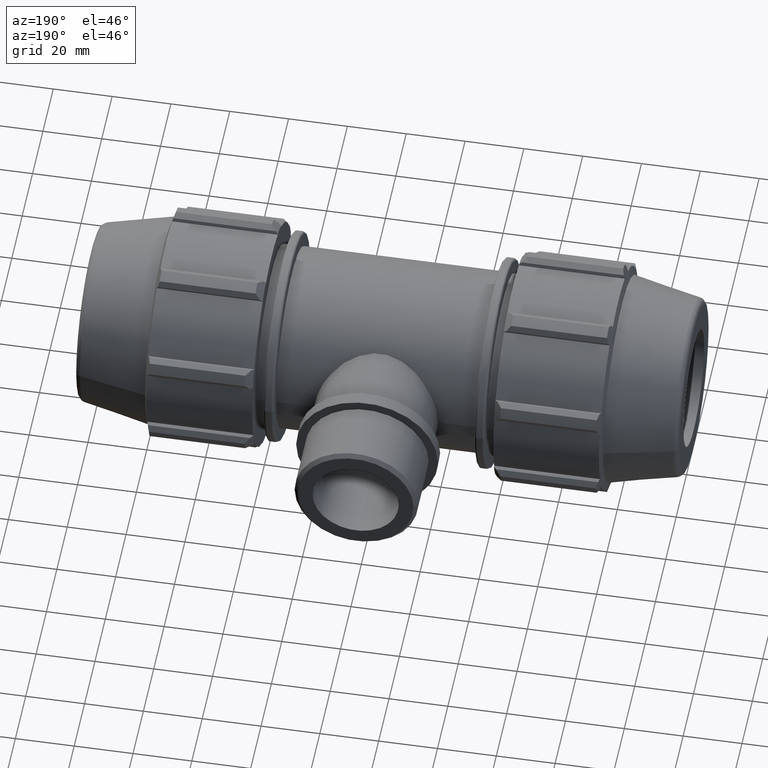
[diagram: clean part render]
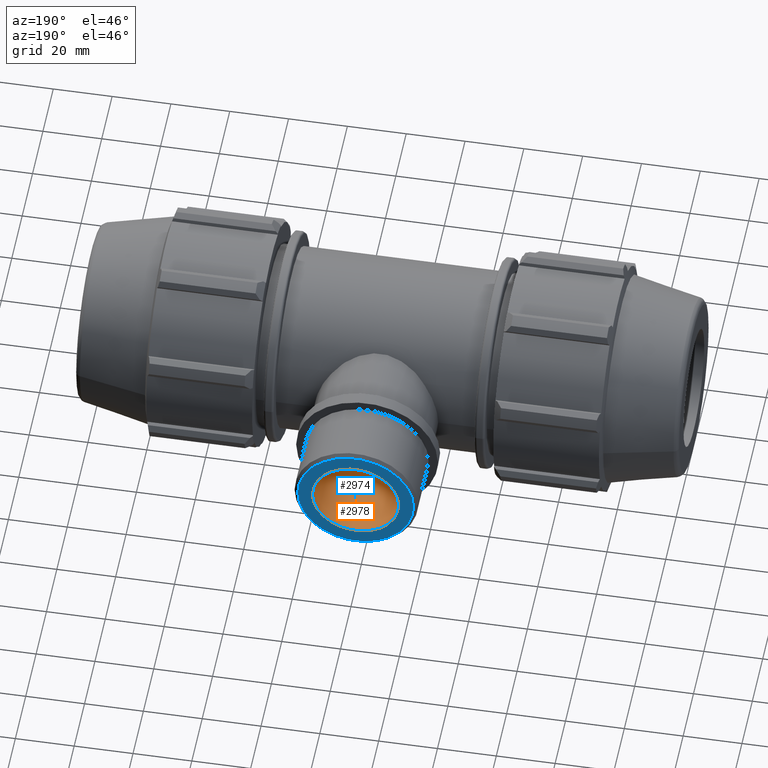
[diagram: same view with the hole feature highlighted: cylindrical wall and planar end face, labeled with their STEP entity ids]
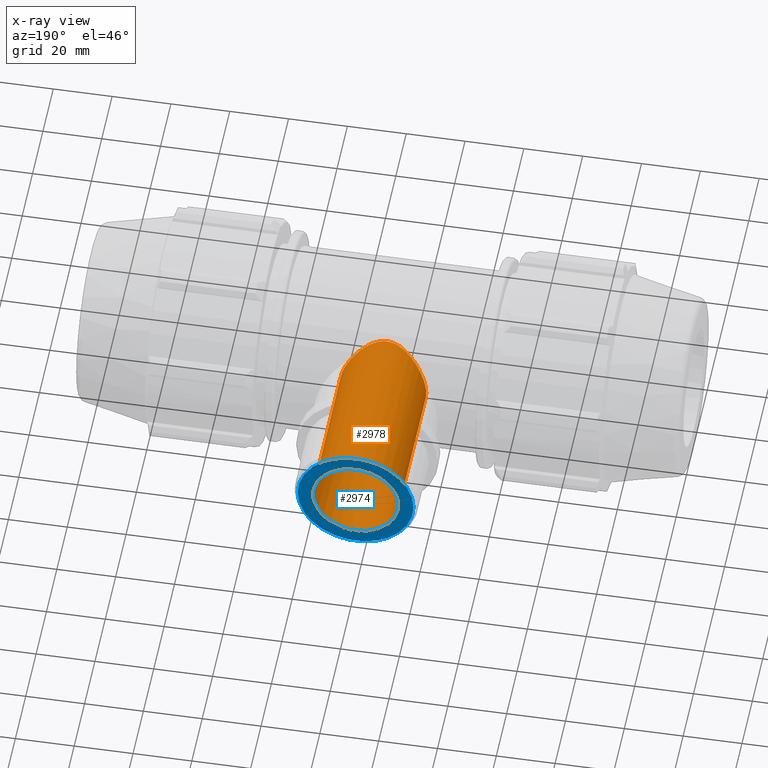
[diagram: x-ray of the same camera — body ghosted, the hole faces saturated]
A machine part, auxiliary view. The highlighted faces form one hole feature of diameter 29.337 mm: the cylindrical wall (entity #2978, orange) and its adjacent planar end face (entity #2974, blue) — they share a circular edge in the B-rep.
The next image is the same camera in x-ray (body ghosted, the hole faces saturated) — the bore reads through the body.
Wall:
#290=CIRCLE('',#3262,14.6685);
#759=FACE_BOUND('',#1129,.T.);
#921=FACE_OUTER_BOUND('',#1128,.T.);
#1128=EDGE_LOOP('',(#2603));
#1129=EDGE_LOOP('',(#2604));
#1137=B_SPLINE_CURVE_WITH_KNOTS('',3,(#5136,#5137,#5138,#5139,#5140,#5141,
#5142,#5143,#5144,#5145,#5146,#5147,#5148,#5149,#5150,#5151,#5152,#5153,
#5154,#5155,#5156,#5157,#5158,#5159,#5160,#5161,#5162,#5163,#5164,#5165,
#5166,#5167,#5168,#5169,#5170,#5171,#5172,#5173,#5174,#5175,#5176,#5177,
#5178,#5179,#5180,#5181,#5182,#5183,#5184,#5185),.UNSPECIFIED.,.T.,.F.,
(4,2,2,2,2,2,2,2,2,2,2,2,2,2,2,2,2,2,2,2,2,2,2,2,4),(0.,0.302762315163081,
0.605524630326163,1.21104926065233,1.79536667951888,2.08752538895216,2.37968409838544,
2.67184280781872,2.964001517252,3.54831893611856,4.15384356644472,4.4566058816078,
4.75936819677088,5.06213051193397,5.36489282709705,5.97041745742321,6.55473487628977,
6.84689358572305,7.13905229515633,7.43121100458961,7.72336971402289,8.30768713288944,
8.91321176321561,9.21597407837869,9.51873639354177),.UNSPECIFIED.);
#1407=VERTEX_POINT('',#5135);
#1414=VERTEX_POINT('',#5223);
#1799=EDGE_CURVE('',#1407,#1407,#1137,.T.);
#1810=EDGE_CURVE('',#1414,#1414,#290,.T.);
#2603=ORIENTED_EDGE('',*,*,#1799,.T.);
#2604=ORIENTED_EDGE('',*,*,#1810,.T.);
#2652=CYLINDRICAL_SURFACE('',#3268,14.6685);
#2978=ADVANCED_FACE('',(#921,#759),#2652,.F.);
#3262=AXIS2_PLACEMENT_3D('',#5224,#4029,#4030);
#3268=AXIS2_PLACEMENT_3D('',#5232,#4041,#4042);
#4029=DIRECTION('center_axis',(-1.22464679914735E-16,1.,0.));
#4030=DIRECTION('ref_axis',(1.,1.22464679914735E-16,0.));
#4041=DIRECTION('center_axis',(-1.22464679914735E-16,1.,0.));
#4042=DIRECTION('ref_axis',(-1.,0.,0.));
#5135=CARTESIAN_POINT('',(-2.22044604925031E-15,10.4324066135288,14.6685));
#5136=CARTESIAN_POINT('Ctrl Pts',(-2.22044604925031E-15,10.4324066135288,
14.6685));
#5137=CARTESIAN_POINT('Ctrl Pts',(-1.00920771721027,10.4324066135288,14.6685));
#5138=CARTESIAN_POINT('Ctrl Pts',(-2.00509733665341,10.5829239168204,14.5640186879207));
#5139=CARTESIAN_POINT('Ctrl Pts',(-3.9303153307272,11.1096912904823,14.1662866614468));
#5140=CARTESIAN_POINT('Ctrl Pts',(-4.86044700845208,11.4830412571089,13.8730890436527));
#5141=CARTESIAN_POINT('Ctrl Pts',(-7.51054314403193,12.7611955290546,12.7453223000439));
#5142=CARTESIAN_POINT('Ctrl Pts',(-9.09489827675257,13.8105690049212,11.6494933629172));
#5143=CARTESIAN_POINT('Ctrl Pts',(-11.6047587348998,15.5801646540906,9.13963290476991));
#5144=CARTESIAN_POINT('Ctrl Pts',(-12.7241955314209,16.4474970209258,7.55493174247802));
#5145=CARTESIAN_POINT('Ctrl Pts',(-13.8746017797575,17.3575532728912,4.85948955697597));
#5146=CARTESIAN_POINT('Ctrl Pts',(-14.1729363855056,17.5981144805144,3.90842376966316));
#5147=CARTESIAN_POINT('Ctrl Pts',(-14.5699743700572,17.919421325088,1.96564213886664));
#5148=CARTESIAN_POINT('Ctrl Pts',(-14.6685,18.,0.973862364777598));
#5149=CARTESIAN_POINT('Ctrl Pts',(-14.6685,18.,-0.973862364777598));
#5150=CARTESIAN_POINT('Ctrl Pts',(-14.5699743700572,17.919421325088,-1.96564213886664));
#5151=CARTESIAN_POINT('Ctrl Pts',(-14.1729363855056,17.5981144805144,-3.90842376966316));
#5152=CARTESIAN_POINT('Ctrl Pts',(-13.8746017797575,17.3575532728912,-4.85948955697597));
#5153=CARTESIAN_POINT('Ctrl Pts',(-12.7241955314209,16.4474970209258,-7.55493174247802));
#5154=CARTESIAN_POINT('Ctrl Pts',(-11.6047587348998,15.5801646540906,-9.13963290476991));
#5155=CARTESIAN_POINT('Ctrl Pts',(-9.09489827675257,13.8105690049212,-11.6494933629172));
#5156=CARTESIAN_POINT('Ctrl Pts',(-7.51054314403193,12.7611955290546,-12.7453223000439));
#5157=CARTESIAN_POINT('Ctrl Pts',(-4.86044700845208,11.4830412571089,-13.8730890436527));
#5158=CARTESIAN_POINT('Ctrl Pts',(-3.9303153307272,11.1096912904823,-14.1662866614468));
#5159=CARTESIAN_POINT('Ctrl Pts',(-2.00509733665341,10.5829239168204,-14.5640186879207));
#5160=CARTESIAN_POINT('Ctrl Pts',(-1.00920771721027,10.4324066135288,-14.6685));
#5161=CARTESIAN_POINT('Ctrl Pts',(1.00920771721027,10.4324066135288,-14.6685));
#5162=CARTESIAN_POINT('Ctrl Pts',(2.00509733665341,10.5829239168204,-14.5640186879207));
#5163=CARTESIAN_POINT('Ctrl Pts',(3.93031533072719,11.1096912904823,-14.1662866614468));
#5164=CARTESIAN_POINT('Ctrl Pts',(4.86044700845207,11.4830412571089,-13.8730890436527));
#5165=CARTESIAN_POINT('Ctrl Pts',(7.51054314403192,12.7611955290546,-12.7453223000439));
#5166=CARTESIAN_POINT('Ctrl Pts',(9.09489827675256,13.8105690049212,-11.6494933629172));
#5167=CARTESIAN_POINT('Ctrl Pts',(11.6047587348998,15.5801646540906,-9.13963290476991));
#5168=CARTESIAN_POINT('Ctrl Pts',(12.7241955314209,16.4474970209258,-7.55493174247802));
#5169=CARTESIAN_POINT('Ctrl Pts',(13.8746017797575,17.3575532728912,-4.85948955697597));
#5170=CARTESIAN_POINT('Ctrl Pts',(14.1729363855056,17.5981144805144,-3.90842376966316));
#5171=CARTESIAN_POINT('Ctrl Pts',(14.5699743700572,17.919421325088,-1.96564213886665));
#5172=CARTESIAN_POINT('Ctrl Pts',(14.6685,18.,-0.973862364777601));
#5173=CARTESIAN_POINT('Ctrl Pts',(14.6685,18.,0.973862364777598));
#5174=CARTESIAN_POINT('Ctrl Pts',(14.5699743700572,17.919421325088,1.96564213886664));
#5175=CARTESIAN_POINT('Ctrl Pts',(14.1729363855056,17.5981144805144,3.90842376966316));
#5176=CARTESIAN_POINT('Ctrl Pts',(13.8746017797575,17.3575532728912,4.85948955697597));
#5177=CARTESIAN_POINT('Ctrl Pts',(12.7241955314209,16.4474970209258,7.55493174247802));
#5178=CARTESIAN_POINT('Ctrl Pts',(11.6047587348998,15.5801646540906,9.13963290476991));
#5179=CARTESIAN_POINT('Ctrl Pts',(9.09489827675257,13.8105690049212,11.6494933629172));
#5180=CARTESIAN_POINT('Ctrl Pts',(7.51054314403193,12.7611955290546,12.7453223000439));
#5181=CARTESIAN_POINT('Ctrl Pts',(4.86044700845207,11.4830412571089,13.8730890436527));
#5182=CARTESIAN_POINT('Ctrl Pts',(3.93031533072719,11.1096912904823,14.1662866614468));
#5183=CARTESIAN_POINT('Ctrl Pts',(2.0050973366534,10.5829239168204,14.5640186879207));
#5184=CARTESIAN_POINT('Ctrl Pts',(1.00920771721027,10.4324066135288,14.6685));
#5185=CARTESIAN_POINT('Ctrl Pts',(-1.38777878078145E-15,10.4324066135288,
14.6685));
#5223=CARTESIAN_POINT('',(-14.6685,71.,0.));
#5224=CARTESIAN_POINT('Origin',(-8.69499227394621E-15,71.,0.));
#5232=CARTESIAN_POINT('Origin',(-4.3474961369731E-15,35.5,0.));
End face:
#101=PLANE('',#3261);
#288=CIRCLE('',#3258,19.6977);
#290=CIRCLE('',#3262,14.6685);
#755=FACE_BOUND('',#1121,.T.);
#917=FACE_OUTER_BOUND('',#1120,.T.);
#1120=EDGE_LOOP('',(#2595));
#1121=EDGE_LOOP('',(#2596));
#1412=VERTEX_POINT('',#5217);
#1414=VERTEX_POINT('',#5223);
#1808=EDGE_CURVE('',#1412,#1412,#288,.T.);
#1810=EDGE_CURVE('',#1414,#1414,#290,.T.);
#2595=ORIENTED_EDGE('',*,*,#1808,.F.);
#2596=ORIENTED_EDGE('',*,*,#1810,.F.);
#2974=ADVANCED_FACE('',(#917,#755),#101,.T.);
#3258=AXIS2_PLACEMENT_3D('',#5218,#4021,#4022);
#3261=AXIS2_PLACEMENT_3D('',#5222,#4027,#4028);
#3262=AXIS2_PLACEMENT_3D('',#5224,#4029,#4030);
#4021=DIRECTION('center_axis',(1.22464679914735E-16,-1.,0.));
#4022=DIRECTION('ref_axis',(1.,1.22464679914735E-16,0.));
#4027=DIRECTION('center_axis',(-1.22464679914735E-16,1.,0.));
#4028=DIRECTION('ref_axis',(0.,0.,1.));
#4029=DIRECTION('center_axis',(-1.22464679914735E-16,1.,0.));
#4030=DIRECTION('ref_axis',(1.,1.22464679914735E-16,0.));
#5217=CARTESIAN_POINT('',(-19.6977,71.,-2.41227252555648E-15));
#5218=CARTESIAN_POINT('Origin',(-8.69499227394621E-15,71.,0.));
#5222=CARTESIAN_POINT('Origin',(-14.6685,71.,0.));
#5223=CARTESIAN_POINT('',(-14.6685,71.,0.));
#5224=CARTESIAN_POINT('Origin',(-8.69499227394621E-15,71.,0.));